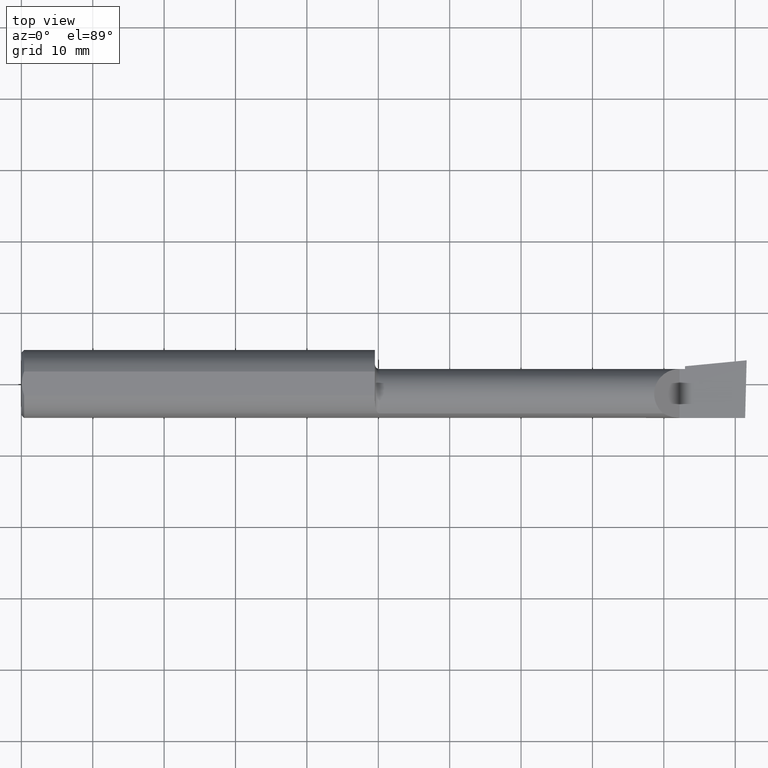
[diagram: clean part render]
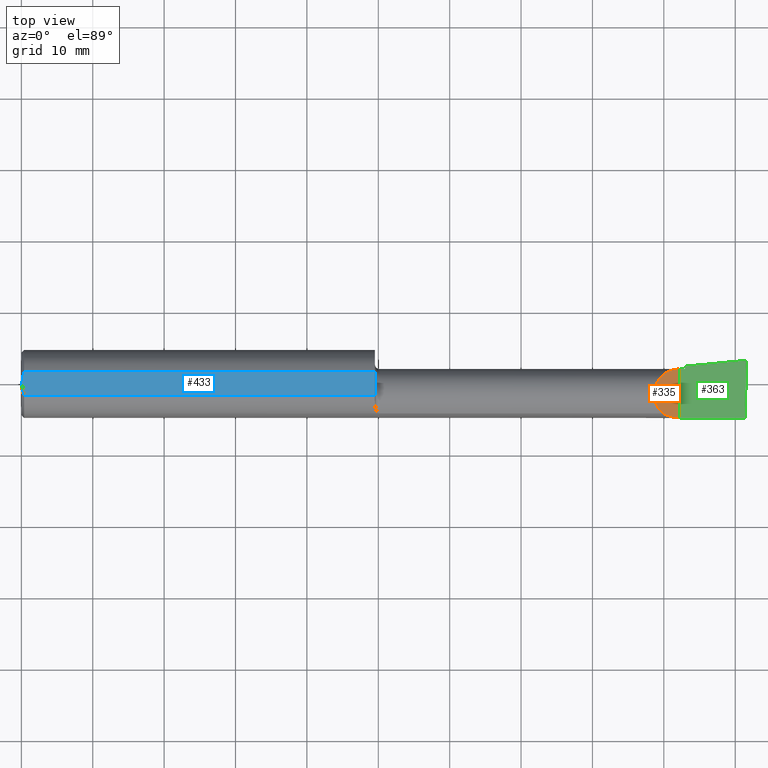
[diagram: same view with three faces highlighted in distinct colors, each labeled with its STEP entity id]
A machine part, top view with three faces highlighted in distinct colors.
Their STEP definitions:

[orange] entity #335 — the highlighted planar face has unit normal (-0.7071, 0, -0.7071).
#40 = AXIS2_PLACEMENT_3D ( 'NONE', #117, #167, #50 ) ;
#43 = CARTESIAN_POINT ( 'NONE',  ( 3.629999999999999893, 0.08264999999999990410, -1.383850883036508279E-16 ) ) ;
#46 = PLANE ( 'NONE',  #40 ) ;
#50 = DIRECTION ( 'NONE',  ( -0.7071067811865507924, 0.000000000000000000, 0.7071067811865443531 ) ) ;
#77 = VERTEX_POINT ( 'NONE', #456 ) ;
#80 = CARTESIAN_POINT ( 'NONE',  ( 3.421229036482944075, -0.06260079402492399470, 0.2087709635170538480 ) ) ;
#97 = CARTESIAN_POINT ( 'NONE',  ( 3.629999999999999893, -0.1873499999999999888, -1.383850883036508279E-16 ) ) ;
#117 = CARTESIAN_POINT ( 'NONE',  ( 3.629999999999999893, -0.2500000000000000555, -1.383850883036508279E-16 ) ) ;
#127 = VERTEX_POINT ( 'NONE', #43 ) ;
#137 =( BOUNDED_CURVE ( )  B_SPLINE_CURVE ( 3, ( #514, #80, #282, #175 ),
 .UNSPECIFIED., .F., .T. ) 
 B_SPLINE_CURVE_WITH_KNOTS ( ( 4, 4 ),
 ( 5.422530673488460629, 7.853981633974483678 ),
 .UNSPECIFIED. ) 
 CURVE ( )  GEOMETRIC_REPRESENTATION_ITEM ( )  RATIONAL_B_SPLINE_CURVE ( ( 1.000000000000000000, 0.5651045289226865886, 0.5651045289226865886, 1.000000000000000000 ) ) 
 REPRESENTATION_ITEM ( '' )  );
#164 = VECTOR ( 'NONE', #443, 39.37007874015748143 ) ;
#167 = DIRECTION ( 'NONE',  ( -0.7071067811865443531, 0.000000000000000000, -0.7071067811865507924 ) ) ;
#172 = EDGE_CURVE ( 'NONE', #77, #418, #248, .T. ) ;
#175 = CARTESIAN_POINT ( 'NONE',  ( 3.629999999999999893, 0.08264999999999990410, -1.383850883036508279E-16 ) ) ;
#231 = CARTESIAN_POINT ( 'NONE',  ( 3.538695632261437130, -0.1635956445993027863, 0.09130436773856213939 ) ) ;
#248 =( BOUNDED_CURVE ( )  B_SPLINE_CURVE ( 3, ( #97, #423, #384, #581 ),
 .UNSPECIFIED., .F., .T. ) 
 B_SPLINE_CURVE_WITH_KNOTS ( ( 4, 4 ),
 ( 4.712388980384689674, 5.221437360734126898 ),
 .UNSPECIFIED. ) 
 CURVE ( )  GEOMETRIC_REPRESENTATION_ITEM ( )  RATIONAL_B_SPLINE_CURVE ( ( 1.000000000000000000, 0.9785221379938655595, 0.9785221379938655595, 1.000000000000000000 ) ) 
 REPRESENTATION_ITEM ( '' )  );
#257 = LINE ( 'NONE', #547, #164 ) ;
#275 = ORIENTED_EDGE ( 'NONE', *, *, #172, .F. ) ;
#279 = ORIENTED_EDGE ( 'NONE', *, *, #304, .T. ) ;
#282 = CARTESIAN_POINT ( 'NONE',  ( 3.475085956200449022, 0.08265000000000018165, 0.1549140437995492336 ) ) ;
#304 = EDGE_CURVE ( 'NONE', #77, #127, #257, .T. ) ;
#335 = ADVANCED_FACE ( 'NONE', ( #497 ), #46, .F. ) ;
#384 = CARTESIAN_POINT ( 'NONE',  ( 3.566758987970637840, -0.1792580844883770452, 0.06324101202936160959 ) ) ;
#418 = VERTEX_POINT ( 'NONE', #231 ) ;
#423 = CARTESIAN_POINT ( 'NONE',  ( 3.597861799102314073, -0.1873499999999999888, 0.03213820089768522348 ) ) ;
#443 = DIRECTION ( 'NONE',  ( -0.000000000000000000, 1.000000000000000000, -0.000000000000000000 ) ) ;
#456 = CARTESIAN_POINT ( 'NONE',  ( 3.629999999999999893, -0.1873499999999999888, -1.383850883036508279E-16 ) ) ;
#479 = EDGE_CURVE ( 'NONE', #418, #127, #137, .T. ) ;
#497 = FACE_OUTER_BOUND ( 'NONE', #519, .T. ) ;
#514 = CARTESIAN_POINT ( 'NONE',  ( 3.538695632261437130, -0.1635956445993027863, 0.09130436773856213939 ) ) ;
#519 = EDGE_LOOP ( 'NONE', ( #595, #275, #279 ) ) ;
#547 = CARTESIAN_POINT ( 'NONE',  ( 3.629999999999999893, -0.2500000000000000555, -1.383850883036508279E-16 ) ) ;
#581 = CARTESIAN_POINT ( 'NONE',  ( 3.538695632261437130, -0.1635956445993027863, 0.09130436773856213939 ) ) ;
#595 = ORIENTED_EDGE ( 'NONE', *, *, #479, .F. ) ;

[blue] entity #433 — the highlighted planar face has unit normal (0, -0, -1).
#11 = CARTESIAN_POINT ( 'NONE',  ( 0.01499999999999997863, -0.06597272163553657975, 0.1753499999999999781 ) ) ;
#23 = EDGE_CURVE ( 'NONE', #450, #371, #580, .T. ) ;
#26 = CARTESIAN_POINT ( 'NONE',  ( 0.008227791779583789808, -0.04447712204611815878, 0.1753499999999999781 ) ) ;
#28 = EDGE_CURVE ( 'NONE', #187, #599, #228, .T. ) ;
#33 = LINE ( 'NONE', #88, #278 ) ;
#58 = LINE ( 'NONE', #263, #237 ) ;
#68 = DIRECTION ( 'NONE',  ( 0.000000000000000000, 1.000000000000000000, -1.438723400918613551E-16 ) ) ;
#81 = CARTESIAN_POINT ( 'NONE',  ( 0.003000000000000218638, 2.334609556160449697E-17, 0.1753499999999999781 ) ) ;
#83 = ORIENTED_EDGE ( 'NONE', *, *, #28, .F. ) ;
#85 = DIRECTION ( 'NONE',  ( 1.000000000000000000, 0.000000000000000000, 0.000000000000000000 ) ) ;
#88 = CARTESIAN_POINT ( 'NONE',  ( 0.000000000000000000, -0.06597272163553657975, 0.1753499999999999781 ) ) ;
#134 = EDGE_CURVE ( 'NONE', #339, #450, #33, .T. ) ;
#152 = CARTESIAN_POINT ( 'NONE',  ( 0.01499999999999999424, 0.06597272163553663527, 0.1753499999999999781 ) ) ;
#182 = CARTESIAN_POINT ( 'NONE',  ( 4.000000000000000000, 0.2373500000000000332, 0.1753499999999999504 ) ) ;
#187 = VERTEX_POINT ( 'NONE', #152 ) ;
#200 = CARTESIAN_POINT ( 'NONE',  ( 0.004115035183746292881, 0.02255629470626744487, 0.1753499999999999781 ) ) ;
#208 = ORIENTED_EDGE ( 'NONE', *, *, #23, .F. ) ;
#219 = DIRECTION ( 'NONE',  ( 0.000000000000000000, -1.438723400918613551E-16, -1.000000000000000000 ) ) ;
#228 = LINE ( 'NONE', #521, #331 ) ;
#237 = VECTOR ( 'NONE', #596, 39.37007874015748143 ) ;
#238 = CARTESIAN_POINT ( 'NONE',  ( 1.950000000000000178, 0.06597272163553663527, 0.1753499999999999781 ) ) ;
#263 = CARTESIAN_POINT ( 'NONE',  ( 1.950000000000000178, 0.2373500000000000332, 0.1753499999999999504 ) ) ;
#267 = EDGE_CURVE ( 'NONE', #371, #187, #578, .T. ) ;
#269 = ORIENTED_EDGE ( 'NONE', *, *, #368, .F. ) ;
#278 = VECTOR ( 'NONE', #341, 39.37007874015748143 ) ;
#288 = AXIS2_PLACEMENT_3D ( 'NONE', #182, #219, #68 ) ;
#297 = CARTESIAN_POINT ( 'NONE',  ( 0.003000000000000169632, 0.01127363201155560934, 0.1753499999999999781 ) ) ;
#330 = CARTESIAN_POINT ( 'NONE',  ( 0.003000000000000172667, -0.01126410975715121283, 0.1753500000000000059 ) ) ;
#331 = VECTOR ( 'NONE', #85, 39.37007874015748143 ) ;
#334 = FACE_OUTER_BOUND ( 'NONE', #396, .T. ) ;
#339 = VERTEX_POINT ( 'NONE', #543 ) ;
#341 = DIRECTION ( 'NONE',  ( -1.000000000000000000, -0.000000000000000000, -0.000000000000000000 ) ) ;
#355 = CARTESIAN_POINT ( 'NONE',  ( 0.003000000000000218638, 2.334609556160449697E-17, 0.1753499999999999781 ) ) ;
#368 = EDGE_CURVE ( 'NONE', #599, #339, #58, .T. ) ;
#371 = VERTEX_POINT ( 'NONE', #355 ) ;
#382 = CARTESIAN_POINT ( 'NONE',  ( 0.003000000000000218638, 2.334609556160449697E-17, 0.1753499999999999781 ) ) ;
#389 = CARTESIAN_POINT ( 'NONE',  ( 0.01125230581755086272, 0.05532998191409922023, 0.1753500000000000059 ) ) ;
#396 = EDGE_LOOP ( 'NONE', ( #269, #83, #555, #208, #460 ) ) ;
#433 = ADVANCED_FACE ( 'NONE', ( #334 ), #506, .F. ) ;
#450 = VERTEX_POINT ( 'NONE', #510 ) ;
#460 = ORIENTED_EDGE ( 'NONE', *, *, #134, .F. ) ;
#506 = PLANE ( 'NONE',  #288 ) ;
#510 = CARTESIAN_POINT ( 'NONE',  ( 0.01499999999999997863, -0.06597272163553657975, 0.1753499999999999781 ) ) ;
#512 = CARTESIAN_POINT ( 'NONE',  ( 0.01128414053810044941, -0.05542038647445821781, 0.1753499999999999781 ) ) ;
#521 = CARTESIAN_POINT ( 'NONE',  ( 0.000000000000000000, 0.06597272163553663527, 0.1753499999999999781 ) ) ;
#537 = CARTESIAN_POINT ( 'NONE',  ( 0.008244775919947424855, 0.04453482769755855164, 0.1753499999999999504 ) ) ;
#543 = CARTESIAN_POINT ( 'NONE',  ( 1.950000000000000178, -0.06597272163553659363, 0.1753499999999999781 ) ) ;
#555 = ORIENTED_EDGE ( 'NONE', *, *, #267, .F. ) ;
#578 = B_SPLINE_CURVE_WITH_KNOTS ( 'NONE', 3,
 ( #382, #297, #200, #537, #389, #589 ),
 .UNSPECIFIED., .F., .F.,
 ( 4, 2, 4 ),
 ( 0.003480013901590607410, 0.004330767971208083697, 0.005181522040825559984 ),
 .UNSPECIFIED. ) ;
#580 = B_SPLINE_CURVE_WITH_KNOTS ( 'NONE', 3,
 ( #11, #512, #26, #619, #330, #81 ),
 .UNSPECIFIED., .F., .F.,
 ( 4, 2, 4 ),
 ( 0.001779942938356815062, 0.002629978419973711019, 0.003480013901590607410 ),
 .UNSPECIFIED. ) ;
#589 = CARTESIAN_POINT ( 'NONE',  ( 0.01499999999999999424, 0.06597272163553663527, 0.1753499999999999781 ) ) ;
#596 = DIRECTION ( 'NONE',  ( 4.268512490100411279E-18, -1.000000000000000000, 1.438723400918613551E-16 ) ) ;
#599 = VERTEX_POINT ( 'NONE', #238 ) ;
#619 = CARTESIAN_POINT ( 'NONE',  ( 0.004093196532652216939, -0.02240707710020816909, 0.1753499999999999504 ) ) ;

[green] entity #363 — the highlighted planar face has unit normal (-0, 0, -1).
#5 = EDGE_CURVE ( 'NONE', #362, #336, #89, .T. ) ;
#16 = CARTESIAN_POINT ( 'NONE',  ( 1.565719721143680372E-32, -0.1873499999999999610, 1.790477306702064235E-16 ) ) ;
#36 = EDGE_CURVE ( 'NONE', #453, #77, #274, .T. ) ;
#43 = CARTESIAN_POINT ( 'NONE',  ( 3.629999999999999893, 0.08264999999999990410, -1.383850883036508279E-16 ) ) ;
#54 = CARTESIAN_POINT ( 'NONE',  ( 3.999999999999979572, 0.1306500000000239969, 8.433726977940392991E-14 ) ) ;
#70 = ORIENTED_EDGE ( 'NONE', *, *, #202, .T. ) ;
#77 = VERTEX_POINT ( 'NONE', #456 ) ;
#89 = LINE ( 'NONE', #630, #515 ) ;
#106 = EDGE_LOOP ( 'NONE', ( #166, #70, #221, #114, #606, #319 ) ) ;
#107 = DIRECTION ( 'NONE',  ( -4.268512490100411279E-18, 1.000000000000000000, 3.732688574539098315E-34 ) ) ;
#114 = ORIENTED_EDGE ( 'NONE', *, *, #376, .F. ) ;
#115 = DIRECTION ( 'NONE',  ( -1.000000000000000000, 0.000000000000000000, 8.744705756855574331E-17 ) ) ;
#127 = VERTEX_POINT ( 'NONE', #43 ) ;
#143 = DIRECTION ( 'NONE',  ( 1.000000000000000000, 4.268512490100411279E-18, 0.000000000000000000 ) ) ;
#144 = VECTOR ( 'NONE', #468, 39.37007874015748143 ) ;
#154 = VECTOR ( 'NONE', #143, 39.37007874015748143 ) ;
#163 = PLANE ( 'NONE',  #486 ) ;
#164 = VECTOR ( 'NONE', #443, 39.37007874015748143 ) ;
#166 = ORIENTED_EDGE ( 'NONE', *, *, #36, .F. ) ;
#191 = CARTESIAN_POINT ( 'NONE',  ( 3.990039159128060398, -0.2497391662021650749, -1.698694533788567331E-16 ) ) ;
#193 = DIRECTION ( 'NONE',  ( 0.9953961983671787417, 0.09584575252022461966, -8.704446866213619353E-17 ) ) ;
#198 = CARTESIAN_POINT ( 'NONE',  ( 3.659999999999999698, 0.08265000000000023717, 1.790477306702066946E-16 ) ) ;
#202 = EDGE_CURVE ( 'NONE', #453, #336, #251, .T. ) ;
#206 = CARTESIAN_POINT ( 'NONE',  ( 3.659999999999999698, 0.09791172361284167236, 1.790479042428870021E-16 ) ) ;
#214 = LINE ( 'NONE', #403, #310 ) ;
#221 = ORIENTED_EDGE ( 'NONE', *, *, #5, .F. ) ;
#230 = VERTEX_POINT ( 'NONE', #198 ) ;
#251 = LINE ( 'NONE', #191, #451 ) ;
#257 = LINE ( 'NONE', #547, #164 ) ;
#274 = LINE ( 'NONE', #16, #144 ) ;
#304 = EDGE_CURVE ( 'NONE', #77, #127, #257, .T. ) ;
#310 = VECTOR ( 'NONE', #107, 39.37007874015748143 ) ;
#319 = ORIENTED_EDGE ( 'NONE', *, *, #304, .F. ) ;
#336 = VERTEX_POINT ( 'NONE', #54 ) ;
#360 = CARTESIAN_POINT ( 'NONE',  ( 4.000000000000000000, -0.2500000000000000555, -1.707404996040164512E-16 ) ) ;
#362 = VERTEX_POINT ( 'NONE', #206 ) ;
#363 = ADVANCED_FACE ( 'NONE', ( #501 ), #163, .F. ) ;
#376 = EDGE_CURVE ( 'NONE', #230, #362, #214, .T. ) ;
#395 = DIRECTION ( 'NONE',  ( -8.744705756855574331E-17, 0.000000000000000000, -1.000000000000000000 ) ) ;
#403 = CARTESIAN_POINT ( 'NONE',  ( 3.659999999999999698, -0.2500000000000000555, -1.410085000307074674E-16 ) ) ;
#443 = DIRECTION ( 'NONE',  ( -0.000000000000000000, 1.000000000000000000, -0.000000000000000000 ) ) ;
#451 = VECTOR ( 'NONE', #629, 39.37007874015748143 ) ;
#453 = VERTEX_POINT ( 'NONE', #520 ) ;
#456 = CARTESIAN_POINT ( 'NONE',  ( 3.629999999999999893, -0.1873499999999999888, -1.383850883036508279E-16 ) ) ;
#468 = DIRECTION ( 'NONE',  ( -1.000000000000000000, -0.000000000000000000, -0.000000000000000000 ) ) ;
#486 = AXIS2_PLACEMENT_3D ( 'NONE', #360, #395, #115 ) ;
#501 = FACE_OUTER_BOUND ( 'NONE', #106, .T. ) ;
#515 = VECTOR ( 'NONE', #193, 39.37007874015748143 ) ;
#520 = CARTESIAN_POINT ( 'NONE',  ( 3.991672876940992154, -0.1873499999999999888, -1.700101953615524951E-16 ) ) ;
#547 = CARTESIAN_POINT ( 'NONE',  ( 3.629999999999999893, -0.2500000000000000555, -1.383850883036508279E-16 ) ) ;
#554 = EDGE_CURVE ( 'NONE', #127, #230, #636, .T. ) ;
#579 = CARTESIAN_POINT ( 'NONE',  ( -5.978051742385470281E-19, 0.08265000000000000124, 1.790477306702064235E-16 ) ) ;
#606 = ORIENTED_EDGE ( 'NONE', *, *, #554, .F. ) ;
#629 = DIRECTION ( 'NONE',  ( 0.02617694830779388956, 0.9996573249755593693, -2.255099122137419725E-18 ) ) ;
#630 = CARTESIAN_POINT ( 'NONE',  ( 2.047026079080032090, -0.05740000000000000657, 4.132328855998353457E-20 ) ) ;
#636 = LINE ( 'NONE', #579, #154 ) ;